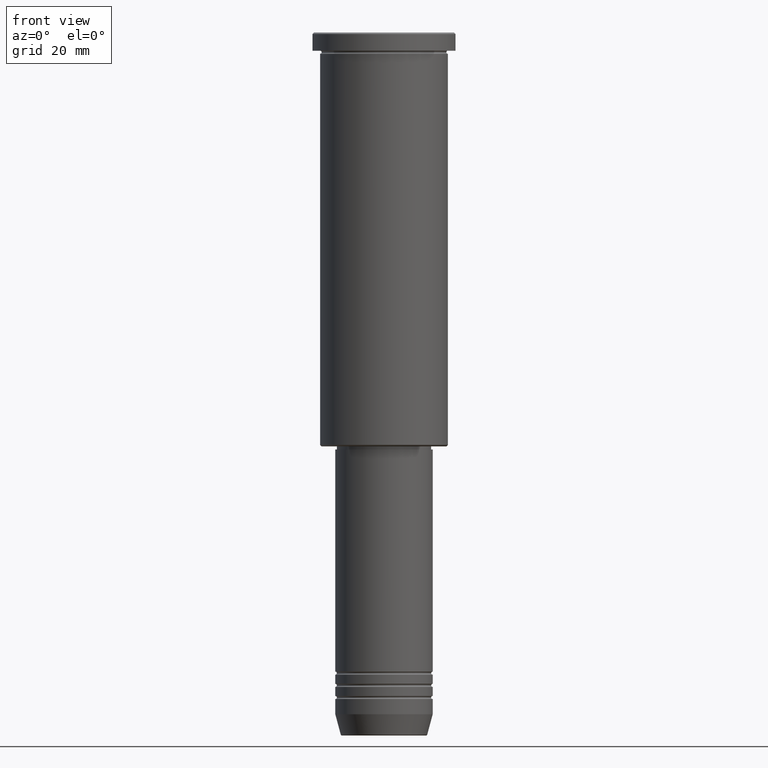
[diagram: clean part render]
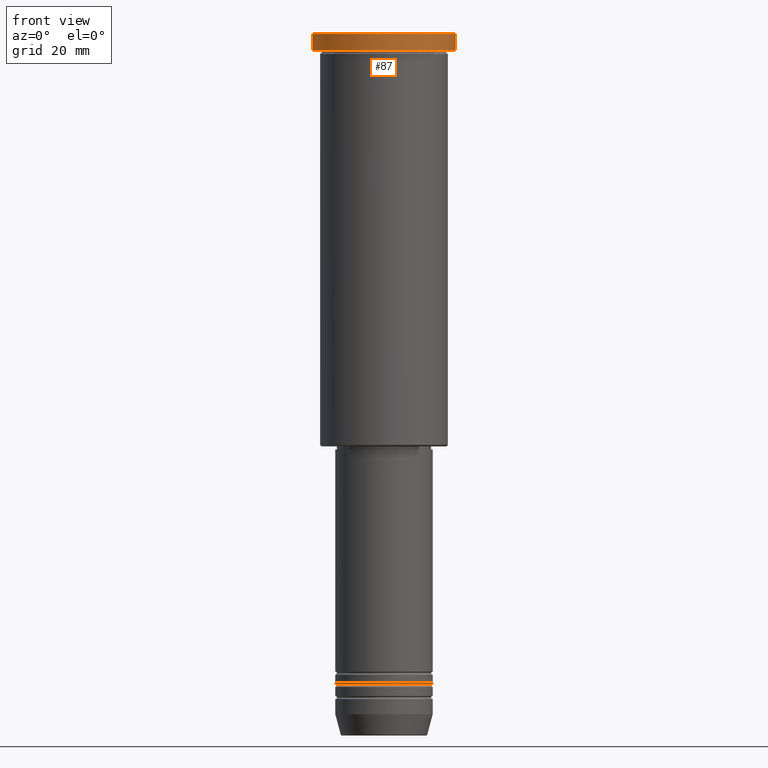
[diagram: same view with one face highlighted and labeled with its STEP entity id]
A machine part, front view. The second image highlights one B-rep face of the part: STEP entity #87.
In plain terms, the highlighted cylindrical surface (partial cylindrical patch) has radius 23.5 mm, axis along (-0, -0, 1).
Its self-contained STEP definition (entity closure, byte-faithful):
#12 = EDGE_CURVE ( 'NONE', #706, #497, #319, .T. ) ;
#20 = DIRECTION ( 'NONE',  ( -0.000000000000000000, -0.000000000000000000, 1.000000000000000000 ) ) ;
#32 = EDGE_LOOP ( 'NONE', ( #635, #332, #909, #50 ) ) ;
#50 = ORIENTED_EDGE ( 'NONE', *, *, #12, .T. ) ;
#55 = DIRECTION ( 'NONE',  ( -0.000000000000000000, -0.000000000000000000, 1.000000000000000000 ) ) ;
#72 = CARTESIAN_POINT ( 'NONE',  ( 0.000000000000000000, 0.000000000000000000, 0.000000000000000000 ) ) ;
#87 = ADVANCED_FACE ( 'NONE', ( #154 ), #896, .T. ) ;
#102 = CARTESIAN_POINT ( 'NONE',  ( 23.50000000000000000, 0.000000000000000000, -0.4999999999999726885 ) ) ;
#151 = CARTESIAN_POINT ( 'NONE',  ( -23.50000000000000000, 2.877919977996280320E-15, 0.000000000000000000 ) ) ;
#154 = FACE_OUTER_BOUND ( 'NONE', #32, .T. ) ;
#157 = CARTESIAN_POINT ( 'NONE',  ( 23.50000000000000000, 0.000000000000000000, 0.000000000000000000 ) ) ;
#165 = AXIS2_PLACEMENT_3D ( 'NONE', #72, #445, #813 ) ;
#212 = VECTOR ( 'NONE', #543, 1000.000000000000000 ) ;
#238 = CARTESIAN_POINT ( 'NONE',  ( 0.000000000000000000, 0.000000000000000000, -0.4999999999999726885 ) ) ;
#253 = AXIS2_PLACEMENT_3D ( 'NONE', #401, #20, #592 ) ;
#319 = CIRCLE ( 'NONE', #976, 23.50000000000000000 ) ;
#332 = ORIENTED_EDGE ( 'NONE', *, *, #339, .T. ) ;
#335 = CARTESIAN_POINT ( 'NONE',  ( -23.50000000000000000, 2.877919977996280320E-15, -0.4999999999999726885 ) ) ;
#339 = EDGE_CURVE ( 'NONE', #384, #451, #772, .T. ) ;
#343 = DIRECTION ( 'NONE',  ( 0.000000000000000000, 0.000000000000000000, -1.000000000000000000 ) ) ;
#384 = VERTEX_POINT ( 'NONE', #1108 ) ;
#401 = CARTESIAN_POINT ( 'NONE',  ( 0.000000000000000000, 0.000000000000000000, -5.999999999999993783 ) ) ;
#445 = DIRECTION ( 'NONE',  ( -0.000000000000000000, -0.000000000000000000, 1.000000000000000000 ) ) ;
#451 = VERTEX_POINT ( 'NONE', #1004 ) ;
#497 = VERTEX_POINT ( 'NONE', #335 ) ;
#543 = DIRECTION ( 'NONE',  ( -0.000000000000000000, -0.000000000000000000, 1.000000000000000000 ) ) ;
#589 = VECTOR ( 'NONE', #55, 1000.000000000000000 ) ;
#592 = DIRECTION ( 'NONE',  ( 1.000000000000000000, 0.000000000000000000, 0.000000000000000000 ) ) ;
#613 = LINE ( 'NONE', #151, #589 ) ;
#622 = EDGE_CURVE ( 'NONE', #384, #497, #613, .T. ) ;
#632 = LINE ( 'NONE', #157, #212 ) ;
#635 = ORIENTED_EDGE ( 'NONE', *, *, #622, .F. ) ;
#700 = DIRECTION ( 'NONE',  ( 1.000000000000000000, 0.000000000000000000, 0.000000000000000000 ) ) ;
#706 = VERTEX_POINT ( 'NONE', #102 ) ;
#772 = CIRCLE ( 'NONE', #253, 23.50000000000000000 ) ;
#813 = DIRECTION ( 'NONE',  ( 1.000000000000000000, 0.000000000000000000, 0.000000000000000000 ) ) ;
#896 = CYLINDRICAL_SURFACE ( 'NONE', #165, 23.50000000000000000 ) ;
#909 = ORIENTED_EDGE ( 'NONE', *, *, #1144, .T. ) ;
#976 = AXIS2_PLACEMENT_3D ( 'NONE', #238, #343, #700 ) ;
#1004 = CARTESIAN_POINT ( 'NONE',  ( 23.50000000000000000, 0.000000000000000000, -5.999999999999993783 ) ) ;
#1108 = CARTESIAN_POINT ( 'NONE',  ( -23.50000000000000000, 2.877919977996280320E-15, -5.999999999999993783 ) ) ;
#1144 = EDGE_CURVE ( 'NONE', #451, #706, #632, .T. ) ;